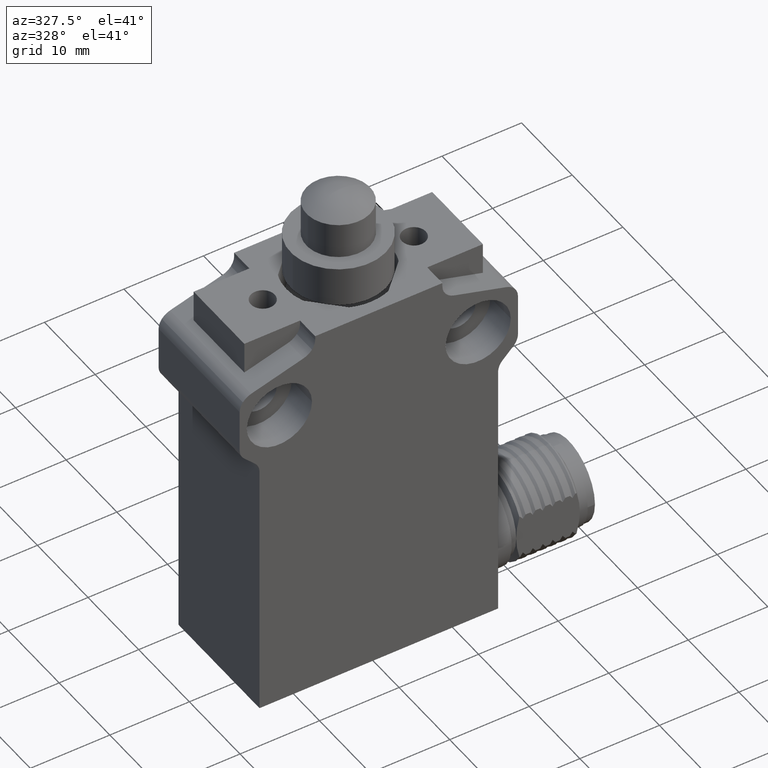
[diagram: clean part render]
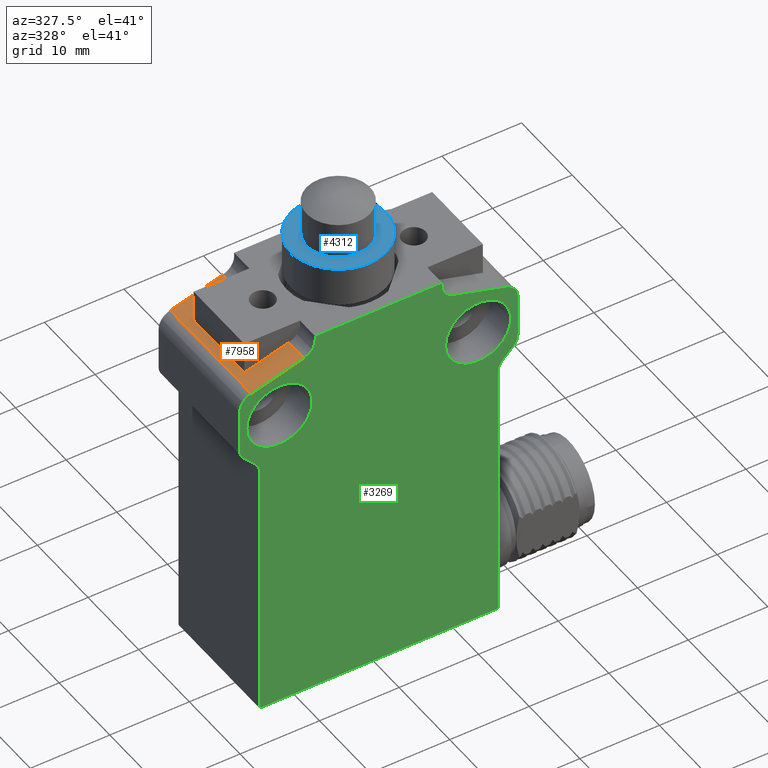
[diagram: same view with three faces highlighted in distinct colors, each labeled with its STEP entity id]
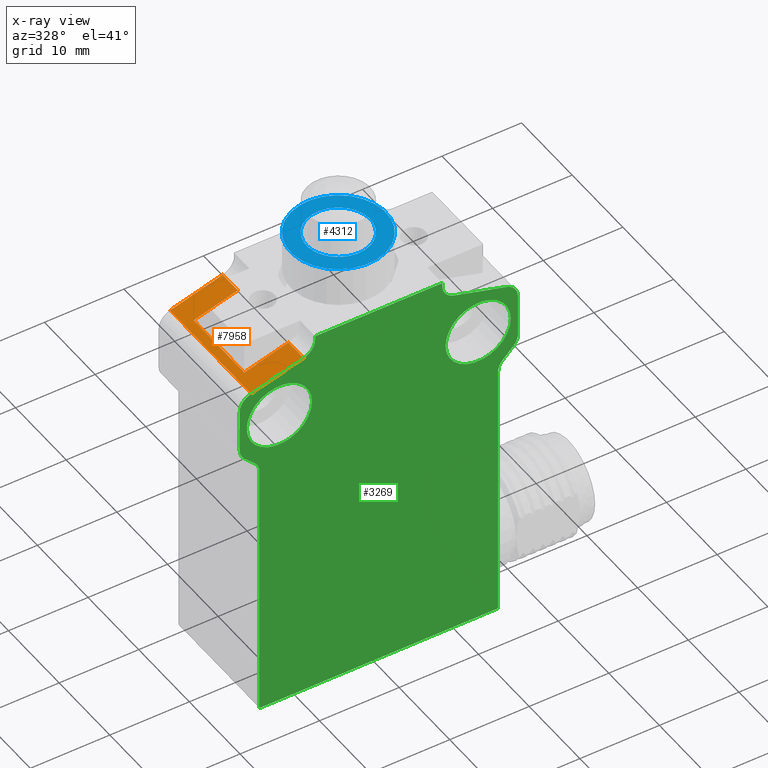
[diagram: x-ray of the same camera — body ghosted, the three highlighted faces saturated]
A machine part, auxiliary view with three faces highlighted in distinct colors.
The next image is the same camera in x-ray (body ghosted, the three faces saturated) — at least one of them is partly hidden behind the body in this view.
Their STEP definitions:

[orange] entity #7958 — the highlighted planar face has unit normal (-0.2781, 0, 0.9606).
#167 = CARTESIAN_POINT ( 'NONE',  ( -0.3718064506660582746, -2.797412204724409697E-16, 0.2591351820181342358 ) ) ;
#363 = CARTESIAN_POINT ( 'NONE',  ( -0.3718064506660582746, -2.797412204724409697E-16, 0.2591351820181342358 ) ) ;
#418 = VECTOR ( 'NONE', #7148, 39.37007874015748143 ) ;
#426 = DIRECTION ( 'NONE',  ( -0.2780580765410568533, 0.0000000000000000000, 0.9605642644145615527 ) ) ;
#460 = CARTESIAN_POINT ( 'NONE',  ( -0.5905511811023621549, -0.5118110236220472231, 0.1958143389970992410 ) ) ;
#533 = ORIENTED_EDGE ( 'NONE', *, *, #1970, .T. ) ;
#555 = VERTEX_POINT ( 'NONE', #5991 ) ;
#683 = LINE ( 'NONE', #167, #3804 ) ;
#801 = EDGE_CURVE ( 'NONE', #7412, #555, #2058, .T. ) ;
#804 = VECTOR ( 'NONE', #4547, 39.37007874015748854 ) ;
#847 = ORIENTED_EDGE ( 'NONE', *, *, #7298, .T. ) ;
#971 = CARTESIAN_POINT ( 'NONE',  ( -0.6321305572079567447, -2.797412204724409697E-16, 0.1837782038086374359 ) ) ;
#1266 = DIRECTION ( 'NONE',  ( 0.0000000000000000000, 1.000000000000000000, 8.881784197001268840E-17 ) ) ;
#1275 = CARTESIAN_POINT ( 'NONE',  ( -0.3718064506660582746, -0.6299212598425196763, 0.2591351820181342358 ) ) ;
#1328 = CARTESIAN_POINT ( 'NONE',  ( -0.5905511811023621549, -0.5118110236220472231, 0.1958143389970992410 ) ) ;
#1567 = VERTEX_POINT ( 'NONE', #971 ) ;
#1819 = EDGE_CURVE ( 'NONE', #6187, #1567, #5300, .T. ) ;
#1875 = VERTEX_POINT ( 'NONE', #3129 ) ;
#1903 = CARTESIAN_POINT ( 'NONE',  ( -0.3718064506660582746, -0.5118110236220472231, 0.2591351820181342358 ) ) ;
#1921 = CARTESIAN_POINT ( 'NONE',  ( -0.5905511811023621549, -0.1181102362204724532, 0.1958143389970992410 ) ) ;
#1970 = EDGE_CURVE ( 'NONE', #6187, #3579, #7594, .T. ) ;
#2058 = LINE ( 'NONE', #1328, #2854 ) ;
#2228 = VECTOR ( 'NONE', #6273, 39.37007874015748143 ) ;
#2502 = EDGE_CURVE ( 'NONE', #4329, #3579, #5261, .T. ) ;
#2557 = ORIENTED_EDGE ( 'NONE', *, *, #2502, .F. ) ;
#2589 = ORIENTED_EDGE ( 'NONE', *, *, #4042, .F. ) ;
#2674 = ORIENTED_EDGE ( 'NONE', *, *, #801, .T. ) ;
#2854 = VECTOR ( 'NONE', #1266, 39.37007874015748143 ) ;
#2929 = PLANE ( 'NONE',  #6134 ) ;
#2991 = CARTESIAN_POINT ( 'NONE',  ( -0.6889763779527560139, -2.797412204724409697E-16, 0.1673228346456692994 ) ) ;
#3129 = CARTESIAN_POINT ( 'NONE',  ( -0.3718064506660582746, -0.1181102362204724532, 0.2591351820181346799 ) ) ;
#3266 = VERTEX_POINT ( 'NONE', #363 ) ;
#3337 = EDGE_CURVE ( 'NONE', #3266, #1875, #7993, .T. ) ;
#3579 = VERTEX_POINT ( 'NONE', #1275 ) ;
#3649 = VECTOR ( 'NONE', #7365, 39.37007874015748143 ) ;
#3712 = DIRECTION ( 'NONE',  ( 0.9605642644145615527, 0.0000000000000000000, 0.2780580765410568533 ) ) ;
#3804 = VECTOR ( 'NONE', #3922, 39.37007874015748854 ) ;
#3870 = EDGE_LOOP ( 'NONE', ( #2557, #2589, #2674, #5430, #7218, #847, #4267, #533 ) ) ;
#3922 = DIRECTION ( 'NONE',  ( -0.9605642644145615527, 0.0000000000000000000, -0.2780580765410570754 ) ) ;
#4042 = EDGE_CURVE ( 'NONE', #7412, #4329, #4100, .T. ) ;
#4058 = FACE_OUTER_BOUND ( 'NONE', #3870, .T. ) ;
#4080 = CARTESIAN_POINT ( 'NONE',  ( -0.3718064506660582746, -0.5118110236220472231, 0.2591351820181342358 ) ) ;
#4100 = LINE ( 'NONE', #6211, #7192 ) ;
#4257 = CARTESIAN_POINT ( 'NONE',  ( -0.6321305572079567447, -0.6299212598425196763, 0.1837782038086374359 ) ) ;
#4267 = ORIENTED_EDGE ( 'NONE', *, *, #1819, .F. ) ;
#4329 = VERTEX_POINT ( 'NONE', #4080 ) ;
#4547 = DIRECTION ( 'NONE',  ( 0.9605642644145615527, 0.0000000000000000000, 0.2780580765410570754 ) ) ;
#4666 = CARTESIAN_POINT ( 'NONE',  ( -0.6321305572079567447, -0.6299212598425196763, 0.1837782038086374359 ) ) ;
#5037 = DIRECTION ( 'NONE',  ( 0.9605642644145613307, 0.0000000000000000000, 0.2780580765410575750 ) ) ;
#5261 = LINE ( 'NONE', #1903, #2228 ) ;
#5300 = LINE ( 'NONE', #4257, #3649 ) ;
#5430 = ORIENTED_EDGE ( 'NONE', *, *, #6364, .T. ) ;
#5991 = CARTESIAN_POINT ( 'NONE',  ( -0.5905511811023621549, -0.1181102362204724532, 0.1958143389970992410 ) ) ;
#6134 = AXIS2_PLACEMENT_3D ( 'NONE', #2991, #426, #7274 ) ;
#6187 = VERTEX_POINT ( 'NONE', #4666 ) ;
#6211 = CARTESIAN_POINT ( 'NONE',  ( -0.5905511811023621549, -0.5118110236220472231, 0.1958143389970992410 ) ) ;
#6273 = DIRECTION ( 'NONE',  ( 0.0000000000000000000, -1.000000000000000000, 0.0000000000000000000 ) ) ;
#6364 = EDGE_CURVE ( 'NONE', #555, #1875, #7978, .T. ) ;
#6436 = CARTESIAN_POINT ( 'NONE',  ( -0.6321305572079567447, -0.6299212598425196763, 0.1837782038086374359 ) ) ;
#7148 = DIRECTION ( 'NONE',  ( 0.0000000000000000000, -1.000000000000000000, 1.184237892933498075E-15 ) ) ;
#7192 = VECTOR ( 'NONE', #3712, 39.37007874015748143 ) ;
#7205 = VECTOR ( 'NONE', #5037, 39.37007874015748143 ) ;
#7218 = ORIENTED_EDGE ( 'NONE', *, *, #3337, .F. ) ;
#7274 = DIRECTION ( 'NONE',  ( 0.9605642644145615527, 0.0000000000000000000, 0.2780580765410568533 ) ) ;
#7298 = EDGE_CURVE ( 'NONE', #3266, #1567, #683, .T. ) ;
#7365 = DIRECTION ( 'NONE',  ( 0.0000000000000000000, 1.000000000000000000, 0.0000000000000000000 ) ) ;
#7412 = VERTEX_POINT ( 'NONE', #460 ) ;
#7594 = LINE ( 'NONE', #6436, #804 ) ;
#7825 = CARTESIAN_POINT ( 'NONE',  ( -0.3718064506660582746, -2.797412204724409697E-16, 0.2591351820181342358 ) ) ;
#7958 = ADVANCED_FACE ( 'NONE', ( #4058 ), #2929, .T. ) ;
#7978 = LINE ( 'NONE', #1921, #7205 ) ;
#7993 = LINE ( 'NONE', #7825, #418 ) ;

[blue] entity #4312 — the highlighted planar face has unit normal (0, 0, 1).
#40 = AXIS2_PLACEMENT_3D ( 'NONE', #3291, #3345, #5914 ) ;
#85 = DIRECTION ( 'NONE',  ( 0.0000000000000000000, 0.0000000000000000000, 1.000000000000000000 ) ) ;
#595 = DIRECTION ( 'NONE',  ( 0.0000000000000000000, 0.0000000000000000000, -1.000000000000000000 ) ) ;
#743 = CARTESIAN_POINT ( 'NONE',  ( -0.2356958233317451579, -0.3306956375219572419, 0.5511811023622046335 ) ) ;
#897 = EDGE_CURVE ( 'NONE', #1409, #3144, #1860, .T. ) ;
#933 = ORIENTED_EDGE ( 'NONE', *, *, #897, .T. ) ;
#1409 = VERTEX_POINT ( 'NONE', #743 ) ;
#1542 = AXIS2_PLACEMENT_3D ( 'NONE', #7967, #595, #3075 ) ;
#1548 = DIRECTION ( 'NONE',  ( -0.9977789854377208112, -0.06661153217628598688, 0.0000000000000000000 ) ) ;
#1772 = AXIS2_PLACEMENT_3D ( 'NONE', #1933, #85, #3793 ) ;
#1860 = CIRCLE ( 'NONE', #40, 0.2362204724409449064 ) ;
#1933 = CARTESIAN_POINT ( 'NONE',  ( -1.774357661203922578E-17, -0.3149606299212597826, 0.5511811023622046335 ) ) ;
#2018 = CIRCLE ( 'NONE', #2746, 0.1574803149606575081 ) ;
#2568 = ORIENTED_EDGE ( 'NONE', *, *, #4474, .T. ) ;
#2746 = AXIS2_PLACEMENT_3D ( 'NONE', #2827, #6608, #1548 ) ;
#2827 = CARTESIAN_POINT ( 'NONE',  ( -5.106377119707195032E-15, -0.3149606299212601157, 0.5511811023622046335 ) ) ;
#2830 = EDGE_CURVE ( 'NONE', #3958, #7625, #2018, .T. ) ;
#3075 = DIRECTION ( 'NONE',  ( -0.9977789854377208112, -0.06661153217628598688, 0.0000000000000000000 ) ) ;
#3144 = VERTEX_POINT ( 'NONE', #6408 ) ;
#3291 = CARTESIAN_POINT ( 'NONE',  ( -1.774357661203922578E-17, -0.3149606299212597826, 0.5511811023622046335 ) ) ;
#3345 = DIRECTION ( 'NONE',  ( 0.0000000000000000000, 0.0000000000000000000, 1.000000000000000000 ) ) ;
#3439 = PLANE ( 'NONE',  #7660 ) ;
#3643 = EDGE_LOOP ( 'NONE', ( #2568, #6107 ) ) ;
#3751 = EDGE_LOOP ( 'NONE', ( #933, #3752 ) ) ;
#3752 = ORIENTED_EDGE ( 'NONE', *, *, #4662, .T. ) ;
#3793 = DIRECTION ( 'NONE',  ( -0.9977789854377208112, -0.06661153217628594525, 0.0000000000000000000 ) ) ;
#3958 = VERTEX_POINT ( 'NONE', #6045 ) ;
#4312 = ADVANCED_FACE ( 'NONE', ( #6899, #5839 ), #3439, .T. ) ;
#4474 = EDGE_CURVE ( 'NONE', #7625, #3958, #5248, .T. ) ;
#4521 = CARTESIAN_POINT ( 'NONE',  ( -0.1178479116658738002, -0.3228281337216086233, 0.5511811023622046335 ) ) ;
#4662 = EDGE_CURVE ( 'NONE', #3144, #1409, #7073, .T. ) ;
#5248 = CIRCLE ( 'NONE', #1542, 0.1574803149606575081 ) ;
#5311 = DIRECTION ( 'NONE',  ( 0.06661153217628600076, -0.9977789854377208112, 0.0000000000000000000 ) ) ;
#5839 = FACE_OUTER_BOUND ( 'NONE', #3751, .T. ) ;
#5914 = DIRECTION ( 'NONE',  ( -0.9977789854377208112, -0.06661153217628594525, 0.0000000000000000000 ) ) ;
#6045 = CARTESIAN_POINT ( 'NONE',  ( 0.1571305488878524392, -0.3044706248541266813, 0.5511811023622046335 ) ) ;
#6107 = ORIENTED_EDGE ( 'NONE', *, *, #2830, .T. ) ;
#6390 = CARTESIAN_POINT ( 'NONE',  ( -0.1571305488878626810, -0.3254506349883936056, 0.5511811023622046335 ) ) ;
#6408 = CARTESIAN_POINT ( 'NONE',  ( 0.2356958233317450746, -0.2992256223205623233, 0.5511811023622046335 ) ) ;
#6608 = DIRECTION ( 'NONE',  ( 0.0000000000000000000, 0.0000000000000000000, -1.000000000000000000 ) ) ;
#6899 = FACE_BOUND ( 'NONE', #3643, .T. ) ;
#7073 = CIRCLE ( 'NONE', #1772, 0.2362204724409449064 ) ;
#7625 = VERTEX_POINT ( 'NONE', #6390 ) ;
#7660 = AXIS2_PLACEMENT_3D ( 'NONE', #4521, #7776, #5311 ) ;
#7776 = DIRECTION ( 'NONE',  ( 0.0000000000000000000, 0.0000000000000000000, 1.000000000000000000 ) ) ;
#7967 = CARTESIAN_POINT ( 'NONE',  ( -5.106377119707195032E-15, -0.3149606299212601157, 0.5511811023622046335 ) ) ;

[green] entity #3269 — the highlighted planar face has unit normal (0, -1, 0).
#1 = AXIS2_PLACEMENT_3D ( 'NONE', #2852, #7223, #7300 ) ;
#53 = ORIENTED_EDGE ( 'NONE', *, *, #4703, .T. ) ;
#106 = CIRCLE ( 'NONE', #7375, 0.07874015748031505668 ) ;
#115 = CARTESIAN_POINT ( 'NONE',  ( 0.5905511811023621549, -0.6299212598425196763, -1.574803149606299302 ) ) ;
#122 = CARTESIAN_POINT ( 'NONE',  ( 0.3149606299212598381, -0.6299212598425196763, 0.3347701634680996241 ) ) ;
#147 = VERTEX_POINT ( 'NONE', #2220 ) ;
#191 = CIRCLE ( 'NONE', #5687, 0.07874015748031502893 ) ;
#283 = DIRECTION ( 'NONE',  ( 0.0000000000000000000, 1.000000000000000000, 0.0000000000000000000 ) ) ;
#289 = DIRECTION ( 'NONE',  ( 0.0000000000000000000, 0.0000000000000000000, 1.000000000000000000 ) ) ;
#300 = CARTESIAN_POINT ( 'NONE',  ( 0.6102362204724409711, -0.6299212598425196763, -0.1032115305218035406 ) ) ;
#359 = VECTOR ( 'NONE', #7072, 39.37007874015748143 ) ;
#413 = CARTESIAN_POINT ( 'NONE',  ( -0.6889763779527560139, -0.6299212598425196763, -0.6102362204724409711 ) ) ;
#457 = AXIS2_PLACEMENT_3D ( 'NONE', #3400, #2062, #6431 ) ;
#466 = CARTESIAN_POINT ( 'NONE',  ( -0.6102362204724409711, -0.6299212598425196763, 0.1081432223586718394 ) ) ;
#526 = VERTEX_POINT ( 'NONE', #1061 ) ;
#530 = CARTESIAN_POINT ( 'NONE',  ( 0.4921259842519685179, -0.6299212598425196763, 9.642889763779526208E-18 ) ) ;
#540 = VERTEX_POINT ( 'NONE', #6609 ) ;
#568 = CARTESIAN_POINT ( 'NONE',  ( 0.5905511811023621549, -0.6299212598425196763, -1.574803149606299302 ) ) ;
#570 = LINE ( 'NONE', #2750, #5449 ) ;
#599 = CIRCLE ( 'NONE', #7450, 0.07874015748031494566 ) ;
#631 = CARTESIAN_POINT ( 'NONE',  ( 0.3937007874015748254, -0.6299212598425196763, 0.3347701634680996241 ) ) ;
#699 = LINE ( 'NONE', #115, #3910 ) ;
#714 = CIRCLE ( 'NONE', #457, 0.1614173228346456601 ) ;
#741 = ORIENTED_EDGE ( 'NONE', *, *, #1634, .F. ) ;
#747 = AXIS2_PLACEMENT_3D ( 'NONE', #5175, #2188, #5926 ) ;
#766 = LINE ( 'NONE', #7640, #359 ) ;
#799 = CARTESIAN_POINT ( 'NONE',  ( -0.6136136392766496916, -0.6299212598425196763, -0.2111895103296496101 ) ) ;
#804 = VECTOR ( 'NONE', #4547, 39.37007874015748854 ) ;
#813 = VECTOR ( 'NONE', #4934, 39.37007874015748143 ) ;
#862 = CARTESIAN_POINT ( 'NONE',  ( 0.6692913385826771977, -0.6299212598425196763, -0.2668672096356763945 ) ) ;
#889 = EDGE_CURVE ( 'NONE', #5776, #928, #3532, .T. ) ;
#904 = DIRECTION ( 'NONE',  ( -0.9238795325112868495, 0.0000000000000000000, 0.3826834323650891156 ) ) ;
#917 = CARTESIAN_POINT ( 'NONE',  ( -0.6659139197784685882, -0.6299212598425196763, -0.1588892298278309356 ) ) ;
#928 = VERTEX_POINT ( 'NONE', #4014 ) ;
#939 = ORIENTED_EDGE ( 'NONE', *, *, #6913, .F. ) ;
#953 = EDGE_CURVE ( 'NONE', #2988, #540, #2550, .T. ) ;
#983 = PLANE ( 'NONE',  #1649 ) ;
#987 = EDGE_CURVE ( 'NONE', #7515, #7141, #714, .T. ) ;
#1026 = CARTESIAN_POINT ( 'NONE',  ( 0.6136136392766496916, -0.6299212598425196763, -0.2111895103296491938 ) ) ;
#1061 = CARTESIAN_POINT ( 'NONE',  ( 0.3307086614173229133, -0.6299212598425196763, -1.976792077363838618E-17 ) ) ;
#1066 = CIRCLE ( 'NONE', #747, 0.1614173228346456601 ) ;
#1067 = VECTOR ( 'NONE', #7635, 39.37007874015748143 ) ;
#1085 = DIRECTION ( 'NONE',  ( -0.7993929185766714962, 0.0000000000000000000, 0.6008085899265014351 ) ) ;
#1093 = ORIENTED_EDGE ( 'NONE', *, *, #1147, .F. ) ;
#1096 = VERTEX_POINT ( 'NONE', #4756 ) ;
#1139 = VECTOR ( 'NONE', #7586, 39.37007874015748143 ) ;
#1147 = EDGE_CURVE ( 'NONE', #3579, #147, #6920, .T. ) ;
#1160 = AXIS2_PLACEMENT_3D ( 'NONE', #1603, #2309, #4196 ) ;
#1173 = DIRECTION ( 'NONE',  ( 0.0000000000000000000, 1.000000000000000000, 0.0000000000000000000 ) ) ;
#1184 = EDGE_LOOP ( 'NONE', ( #7534, #6007, #2174, #5016, #2548, #6207, #7504, #53, #1864, #2951, #7593, #1093, #4248, #7153, #1783, #5060, #2793, #2749, #5017, #2959, #4455, #939, #1957, #5777, #7428, #5680, #3944, #741 ) ) ;
#1226 = VERTEX_POINT ( 'NONE', #4211 ) ;
#1237 = CARTESIAN_POINT ( 'NONE',  ( -0.6889763779527560139, -0.6299212598425196763, -0.1032115305218037488 ) ) ;
#1256 = EDGE_CURVE ( 'NONE', #7990, #4625, #5579, .T. ) ;
#1275 = CARTESIAN_POINT ( 'NONE',  ( -0.3718064506660582746, -0.6299212598425196763, 0.2591351820181342358 ) ) ;
#1352 = EDGE_CURVE ( 'NONE', #5130, #5776, #2239, .T. ) ;
#1472 = CARTESIAN_POINT ( 'NONE',  ( -0.4921259842519685179, -0.6299212598425196763, 9.642889763779526208E-18 ) ) ;
#1512 = LINE ( 'NONE', #122, #3110 ) ;
#1533 = EDGE_CURVE ( 'NONE', #6396, #1226, #5172, .T. ) ;
#1551 = EDGE_LOOP ( 'NONE', ( #6977, #2275 ) ) ;
#1603 = CARTESIAN_POINT ( 'NONE',  ( -0.6692913385826771977, -0.6299212598425196763, -0.2668672096356767831 ) ) ;
#1620 = DIRECTION ( 'NONE',  ( 0.0000000000000000000, -1.000000000000000000, 0.0000000000000000000 ) ) ;
#1634 = EDGE_CURVE ( 'NONE', #6561, #1773, #4684, .T. ) ;
#1649 = AXIS2_PLACEMENT_3D ( 'NONE', #413, #1620, #2813 ) ;
#1660 = EDGE_CURVE ( 'NONE', #5603, #2390, #106, .T. ) ;
#1676 = FACE_BOUND ( 'NONE', #6865, .T. ) ;
#1686 = AXIS2_PLACEMENT_3D ( 'NONE', #862, #3993, #904 ) ;
#1691 = ORIENTED_EDGE ( 'NONE', *, *, #3456, .T. ) ;
#1737 = CARTESIAN_POINT ( 'NONE',  ( -0.6535433070866142335, -0.6299212598425196763, 1.902654355788085128E-16 ) ) ;
#1769 = EDGE_CURVE ( 'NONE', #1096, #5968, #5593, .T. ) ;
#1773 = VERTEX_POINT ( 'NONE', #6744 ) ;
#1783 = ORIENTED_EDGE ( 'NONE', *, *, #1660, .F. ) ;
#1798 = DIRECTION ( 'NONE',  ( -0.7993929185766714962, 0.0000000000000000000, 0.6008085899265014351 ) ) ;
#1846 = CARTESIAN_POINT ( 'NONE',  ( -0.6102362204724409711, -0.6299212598425196763, 0.1081432223586718394 ) ) ;
#1862 = DIRECTION ( 'NONE',  ( -0.9238795325112868495, 0.0000000000000000000, -0.3826834323650897818 ) ) ;
#1864 = ORIENTED_EDGE ( 'NONE', *, *, #1769, .F. ) ;
#1872 = EDGE_CURVE ( 'NONE', #147, #4939, #2842, .T. ) ;
#1874 = DIRECTION ( 'NONE',  ( 0.0000000000000000000, 1.000000000000000000, 0.0000000000000000000 ) ) ;
#1940 = DIRECTION ( 'NONE',  ( 0.7993929185766708301, 0.0000000000000000000, -0.6008085899265023233 ) ) ;
#1946 = CIRCLE ( 'NONE', #6882, 0.1614173228346456601 ) ;
#1957 = ORIENTED_EDGE ( 'NONE', *, *, #6679, .F. ) ;
#1970 = EDGE_CURVE ( 'NONE', #6187, #3579, #7594, .T. ) ;
#2014 = CARTESIAN_POINT ( 'NONE',  ( 0.3149606299212598381, -0.6299212598425196763, 0.3347701634680996241 ) ) ;
#2049 = CARTESIAN_POINT ( 'NONE',  ( 0.6692913385826771977, -0.6299212598425196763, -0.2668672096356763945 ) ) ;
#2062 = DIRECTION ( 'NONE',  ( 0.0000000000000000000, 1.000000000000000000, 0.0000000000000000000 ) ) ;
#2174 = ORIENTED_EDGE ( 'NONE', *, *, #6828, .F. ) ;
#2188 = DIRECTION ( 'NONE',  ( 0.0000000000000000000, 1.000000000000000000, 0.0000000000000000000 ) ) ;
#2220 = CARTESIAN_POINT ( 'NONE',  ( -0.3307564631041991499, -0.6299212598425196763, 0.2874624004817612488 ) ) ;
#2239 = CIRCLE ( 'NONE', #6811, 0.07874015748031494566 ) ;
#2264 = CARTESIAN_POINT ( 'NONE',  ( 0.3718064506660586632, -0.6299212598425196763, 0.2591351820181346799 ) ) ;
#2275 = ORIENTED_EDGE ( 'NONE', *, *, #987, .T. ) ;
#2288 = DIRECTION ( 'NONE',  ( 0.7993929185766708301, 0.0000000000000000000, 0.6008085899265023233 ) ) ;
#2309 = DIRECTION ( 'NONE',  ( 0.0000000000000000000, -1.000000000000000000, 0.0000000000000000000 ) ) ;
#2390 = VERTEX_POINT ( 'NONE', #3787 ) ;
#2433 = CARTESIAN_POINT ( 'NONE',  ( -0.5905511811023621549, -0.6299212598425196763, -1.574803149606299302 ) ) ;
#2464 = FACE_OUTER_BOUND ( 'NONE', #1184, .T. ) ;
#2465 = DIRECTION ( 'NONE',  ( 0.9238795325112868495, 0.0000000000000000000, 0.3826834323650891156 ) ) ;
#2470 = VERTEX_POINT ( 'NONE', #2638 ) ;
#2495 = DIRECTION ( 'NONE',  ( 0.0000000000000000000, -1.000000000000000000, 0.0000000000000000000 ) ) ;
#2503 = AXIS2_PLACEMENT_3D ( 'NONE', #530, #1173, #4948 ) ;
#2525 = CARTESIAN_POINT ( 'NONE',  ( -0.6102362204724409711, -0.6299212598425196763, -0.1032115305218037488 ) ) ;
#2548 = ORIENTED_EDGE ( 'NONE', *, *, #4826, .T. ) ;
#2550 = LINE ( 'NONE', #5884, #6161 ) ;
#2592 = EDGE_CURVE ( 'NONE', #4827, #5109, #5254, .T. ) ;
#2606 = CIRCLE ( 'NONE', #1160, 0.07874015748031494566 ) ;
#2635 = CARTESIAN_POINT ( 'NONE',  ( 0.6829826403552194947, -0.6299212598425196763, -0.1333440842513381741 ) ) ;
#2638 = CARTESIAN_POINT ( 'NONE',  ( -0.5965449186998986741, -0.6299212598425196763, -0.2367346559061422051 ) ) ;
#2740 = EDGE_CURVE ( 'NONE', #5109, #7990, #191, .T. ) ;
#2749 = ORIENTED_EDGE ( 'NONE', *, *, #2740, .F. ) ;
#2750 = CARTESIAN_POINT ( 'NONE',  ( 0.6321305572079567447, -0.6299212598425196763, 0.1837782038086374359 ) ) ;
#2753 = CIRCLE ( 'NONE', #6397, 0.07874015748031494566 ) ;
#2769 = CARTESIAN_POINT ( 'NONE',  ( 0.6102362204724409711, -0.6299212598425196763, 0.1081432223586718394 ) ) ;
#2793 = ORIENTED_EDGE ( 'NONE', *, *, #1256, .F. ) ;
#2813 = DIRECTION ( 'NONE',  ( 0.0000000000000000000, 0.0000000000000000000, 1.000000000000000000 ) ) ;
#2842 = CIRCLE ( 'NONE', #3967, 0.07874015748031494566 ) ;
#2852 = CARTESIAN_POINT ( 'NONE',  ( 0.6102362204724409711, -0.6299212598425196763, -0.1032115305218035406 ) ) ;
#2861 = VECTOR ( 'NONE', #2907, 39.37007874015748143 ) ;
#2907 = DIRECTION ( 'NONE',  ( 0.0000000000000000000, 0.0000000000000000000, 1.000000000000000000 ) ) ;
#2919 = EDGE_CURVE ( 'NONE', #2390, #6187, #7431, .T. ) ;
#2946 = DIRECTION ( 'NONE',  ( 0.7993929185766708301, 0.0000000000000000000, -0.6008085899265023233 ) ) ;
#2951 = ORIENTED_EDGE ( 'NONE', *, *, #3921, .T. ) ;
#2959 = ORIENTED_EDGE ( 'NONE', *, *, #6123, .F. ) ;
#2988 = VERTEX_POINT ( 'NONE', #4956 ) ;
#3008 = DIRECTION ( 'NONE',  ( -0.7993929185766708301, 0.0000000000000000000, -0.6008085899265023233 ) ) ;
#3061 = CARTESIAN_POINT ( 'NONE',  ( -0.3937007874015748254, -0.6299212598425196763, 0.3347701634681000127 ) ) ;
#3110 = VECTOR ( 'NONE', #4438, 39.37007874015748143 ) ;
#3113 = DIRECTION ( 'NONE',  ( 0.0000000000000000000, 1.000000000000000000, 0.0000000000000000000 ) ) ;
#3120 = VECTOR ( 'NONE', #8004, 39.37007874015748143 ) ;
#3256 = AXIS2_PLACEMENT_3D ( 'NONE', #3061, #5518, #2946 ) ;
#3269 = ADVANCED_FACE ( 'NONE', ( #3328, #1676, #2464 ), #983, .T. ) ;
#3328 = FACE_BOUND ( 'NONE', #1551, .T. ) ;
#3389 = DIRECTION ( 'NONE',  ( 0.7993929185766708301, 0.0000000000000000000, 0.6008085899265023233 ) ) ;
#3400 = CARTESIAN_POINT ( 'NONE',  ( -0.4921259842519685179, -0.6299212598425196763, 9.642889763779526208E-18 ) ) ;
#3456 = EDGE_CURVE ( 'NONE', #6784, #526, #7024, .T. ) ;
#3475 = CARTESIAN_POINT ( 'NONE',  ( -0.6889763779527560139, -0.6299212598425196763, -0.1032115305218037488 ) ) ;
#3488 = DIRECTION ( 'NONE',  ( 0.9238795325112868495, 0.0000000000000000000, -0.3826834323650897818 ) ) ;
#3532 = CIRCLE ( 'NONE', #1686, 0.07874015748031494566 ) ;
#3540 = LINE ( 'NONE', #3475, #2861 ) ;
#3579 = VERTEX_POINT ( 'NONE', #1275 ) ;
#3640 = AXIS2_PLACEMENT_3D ( 'NONE', #2525, #3113, #1862 ) ;
#3787 = CARTESIAN_POINT ( 'NONE',  ( -0.6731805447698165912, -0.6299212598425196763, 0.1554509853450105339 ) ) ;
#3910 = VECTOR ( 'NONE', #7579, 39.37007874015748143 ) ;
#3921 = EDGE_CURVE ( 'NONE', #1096, #4939, #6047, .T. ) ;
#3944 = ORIENTED_EDGE ( 'NONE', *, *, #7698, .T. ) ;
#3967 = AXIS2_PLACEMENT_3D ( 'NONE', #5128, #2495, #1940 ) ;
#3993 = DIRECTION ( 'NONE',  ( 0.0000000000000000000, -1.000000000000000000, 0.0000000000000000000 ) ) ;
#4009 = DIRECTION ( 'NONE',  ( 0.0000000000000000000, 1.000000000000000000, 0.0000000000000000000 ) ) ;
#4014 = CARTESIAN_POINT ( 'NONE',  ( 0.5905511811023621549, -0.6299212598425196763, -0.2668672096356763945 ) ) ;
#4028 = VERTEX_POINT ( 'NONE', #5509 ) ;
#4066 = LINE ( 'NONE', #5686, #1139 ) ;
#4146 = DIRECTION ( 'NONE',  ( 0.0000000000000000000, -2.145195073449075173E-14, -1.000000000000000000 ) ) ;
#4196 = DIRECTION ( 'NONE',  ( 0.9238795325112868495, 0.0000000000000000000, 0.3826834323650891156 ) ) ;
#4211 = CARTESIAN_POINT ( 'NONE',  ( 0.6731805447698165912, -0.6299212598425196763, 0.1554509853450105894 ) ) ;
#4248 = ORIENTED_EDGE ( 'NONE', *, *, #1970, .F. ) ;
#4283 = EDGE_CURVE ( 'NONE', #526, #6784, #1066, .T. ) ;
#4371 = DIRECTION ( 'NONE',  ( 0.0000000000000000000, -1.000000000000000000, 0.0000000000000000000 ) ) ;
#4401 = EDGE_CURVE ( 'NONE', #6067, #2470, #2606, .T. ) ;
#4411 = CARTESIAN_POINT ( 'NONE',  ( -0.5905511811023621549, -0.6299212598425196763, -0.2668672096356767831 ) ) ;
#4438 = DIRECTION ( 'NONE',  ( 0.0000000000000000000, 2.145195073449065391E-14, 1.000000000000000000 ) ) ;
#4455 = ORIENTED_EDGE ( 'NONE', *, *, #4401, .F. ) ;
#4547 = DIRECTION ( 'NONE',  ( 0.9605642644145615527, 0.0000000000000000000, 0.2780580765410570754 ) ) ;
#4625 = VERTEX_POINT ( 'NONE', #1237 ) ;
#4666 = CARTESIAN_POINT ( 'NONE',  ( -0.6321305572079567447, -0.6299212598425196763, 0.1837782038086374359 ) ) ;
#4684 = CIRCLE ( 'NONE', #1, 0.07874015748031502893 ) ;
#4690 = VECTOR ( 'NONE', #4146, 39.37007874015748143 ) ;
#4703 = EDGE_CURVE ( 'NONE', #7802, #5968, #1512, .T. ) ;
#4741 = AXIS2_PLACEMENT_3D ( 'NONE', #2769, #283, #3389 ) ;
#4756 = CARTESIAN_POINT ( 'NONE',  ( -0.3149606299212598381, -0.6299212598425196763, 0.3543307086614173040 ) ) ;
#4826 = EDGE_CURVE ( 'NONE', #6396, #5590, #570, .T. ) ;
#4827 = VERTEX_POINT ( 'NONE', #5154 ) ;
#4830 = DIRECTION ( 'NONE',  ( 0.0000000000000000000, 1.000000000000000000, 0.0000000000000000000 ) ) ;
#4868 = EDGE_CURVE ( 'NONE', #928, #5285, #766, .T. ) ;
#4934 = DIRECTION ( 'NONE',  ( 1.000000000000000000, 0.0000000000000000000, 0.0000000000000000000 ) ) ;
#4939 = VERTEX_POINT ( 'NONE', #7827 ) ;
#4948 = DIRECTION ( 'NONE',  ( 1.000000000000000000, 0.0000000000000000000, 0.0000000000000000000 ) ) ;
#4956 = CARTESIAN_POINT ( 'NONE',  ( 0.6889763779527560139, -0.6299212598425196763, -0.1032115305218035406 ) ) ;
#5016 = ORIENTED_EDGE ( 'NONE', *, *, #1533, .F. ) ;
#5017 = ORIENTED_EDGE ( 'NONE', *, *, #2592, .F. ) ;
#5060 = ORIENTED_EDGE ( 'NONE', *, *, #5890, .F. ) ;
#5073 = CARTESIAN_POINT ( 'NONE',  ( -0.5905511811023621549, -0.6299212598425196763, -1.574803149606299302 ) ) ;
#5075 = CARTESIAN_POINT ( 'NONE',  ( -0.6692913385826771977, -0.6299212598425196763, -0.2668672096356767831 ) ) ;
#5081 = CARTESIAN_POINT ( 'NONE',  ( 0.3937007874015748254, -0.6299212598425196763, 0.3347701634680996241 ) ) ;
#5109 = VERTEX_POINT ( 'NONE', #917 ) ;
#5128 = CARTESIAN_POINT ( 'NONE',  ( -0.3937007874015748254, -0.6299212598425196763, 0.3347701634681000127 ) ) ;
#5130 = VERTEX_POINT ( 'NONE', #1026 ) ;
#5154 = CARTESIAN_POINT ( 'NONE',  ( -0.6136136392766496916, -0.6299212598425196763, -0.2111895103296496101 ) ) ;
#5172 = CIRCLE ( 'NONE', #4741, 0.07874015748031494566 ) ;
#5175 = CARTESIAN_POINT ( 'NONE',  ( 0.4921259842519685179, -0.6299212598425196763, 9.642889763779526208E-18 ) ) ;
#5181 = DIRECTION ( 'NONE',  ( -0.9238795325112868495, 0.0000000000000000000, 0.3826834323650891156 ) ) ;
#5254 = LINE ( 'NONE', #799, #1067 ) ;
#5256 = DIRECTION ( 'NONE',  ( 0.0000000000000000000, 1.000000000000000000, 0.0000000000000000000 ) ) ;
#5264 = CIRCLE ( 'NONE', #6318, 0.07874015748031494566 ) ;
#5283 = CARTESIAN_POINT ( 'NONE',  ( 0.6535433070866142335, -0.6299212598425196763, 9.642889763779526208E-18 ) ) ;
#5285 = VERTEX_POINT ( 'NONE', #568 ) ;
#5387 = DIRECTION ( 'NONE',  ( 0.0000000000000000000, 1.000000000000000000, 0.0000000000000000000 ) ) ;
#5403 = CARTESIAN_POINT ( 'NONE',  ( -0.3149606299212598381, -0.6299212598425196763, 0.3543307086614173040 ) ) ;
#5406 = DIRECTION ( 'NONE',  ( 0.0000000000000000000, 1.000000000000000000, 0.0000000000000000000 ) ) ;
#5449 = VECTOR ( 'NONE', #5786, 39.37007874015748143 ) ;
#5509 = CARTESIAN_POINT ( 'NONE',  ( 0.3307564631041991499, -0.6299212598425196763, 0.2874624004817608602 ) ) ;
#5518 = DIRECTION ( 'NONE',  ( 0.0000000000000000000, -1.000000000000000000, 0.0000000000000000000 ) ) ;
#5562 = CIRCLE ( 'NONE', #7194, 0.07874015748031494566 ) ;
#5566 = LINE ( 'NONE', #2433, #3120 ) ;
#5579 = CIRCLE ( 'NONE', #3640, 0.07874015748031502893 ) ;
#5590 = VERTEX_POINT ( 'NONE', #2264 ) ;
#5593 = LINE ( 'NONE', #6209, #813 ) ;
#5603 = VERTEX_POINT ( 'NONE', #5966 ) ;
#5680 = ORIENTED_EDGE ( 'NONE', *, *, #1352, .F. ) ;
#5686 = CARTESIAN_POINT ( 'NONE',  ( 0.6136136392766496916, -0.6299212598425196763, -0.2111895103296491938 ) ) ;
#5687 = AXIS2_PLACEMENT_3D ( 'NONE', #5909, #5256, #5848 ) ;
#5776 = VERTEX_POINT ( 'NONE', #7163 ) ;
#5777 = ORIENTED_EDGE ( 'NONE', *, *, #4868, .F. ) ;
#5786 = DIRECTION ( 'NONE',  ( -0.9605642644145613307, 0.0000000000000000000, 0.2780580765410575750 ) ) ;
#5848 = DIRECTION ( 'NONE',  ( -0.9238795325112868495, 0.0000000000000000000, -0.3826834323650897818 ) ) ;
#5884 = CARTESIAN_POINT ( 'NONE',  ( 0.6889763779527560139, -0.6299212598425196763, -0.1032115305218035406 ) ) ;
#5890 = EDGE_CURVE ( 'NONE', #4625, #5603, #3540, .T. ) ;
#5909 = CARTESIAN_POINT ( 'NONE',  ( -0.6102362204724409711, -0.6299212598425196763, -0.1032115305218037488 ) ) ;
#5926 = DIRECTION ( 'NONE',  ( 1.000000000000000000, 0.0000000000000000000, 0.0000000000000000000 ) ) ;
#5966 = CARTESIAN_POINT ( 'NONE',  ( -0.6889763779527560139, -0.6299212598425196763, 0.1081432223586718394 ) ) ;
#5968 = VERTEX_POINT ( 'NONE', #7301 ) ;
#6007 = ORIENTED_EDGE ( 'NONE', *, *, #953, .T. ) ;
#6047 = LINE ( 'NONE', #5403, #4690 ) ;
#6067 = VERTEX_POINT ( 'NONE', #4411 ) ;
#6090 = CARTESIAN_POINT ( 'NONE',  ( -0.6829826403552194947, -0.6299212598425196763, -0.1333440842513383684 ) ) ;
#6123 = EDGE_CURVE ( 'NONE', #2470, #4827, #2753, .T. ) ;
#6161 = VECTOR ( 'NONE', #289, 39.37007874015748143 ) ;
#6187 = VERTEX_POINT ( 'NONE', #4666 ) ;
#6204 = ORIENTED_EDGE ( 'NONE', *, *, #4283, .T. ) ;
#6207 = ORIENTED_EDGE ( 'NONE', *, *, #6972, .F. ) ;
#6209 = CARTESIAN_POINT ( 'NONE',  ( -0.3149606299212598381, -0.6299212598425196763, 0.3543307086614173040 ) ) ;
#6286 = DIRECTION ( 'NONE',  ( 0.0000000000000000000, -1.000000000000000000, 0.0000000000000000000 ) ) ;
#6317 = CARTESIAN_POINT ( 'NONE',  ( -0.3307086614173229133, -0.6299212598425196763, -1.494647637795278066E-17 ) ) ;
#6318 = AXIS2_PLACEMENT_3D ( 'NONE', #631, #4371, #3008 ) ;
#6336 = AXIS2_PLACEMENT_3D ( 'NONE', #300, #5387, #3488 ) ;
#6396 = VERTEX_POINT ( 'NONE', #8038 ) ;
#6397 = AXIS2_PLACEMENT_3D ( 'NONE', #5075, #6286, #2465 ) ;
#6431 = DIRECTION ( 'NONE',  ( -1.000000000000000000, 0.0000000000000000000, 0.0000000000000000000 ) ) ;
#6436 = CARTESIAN_POINT ( 'NONE',  ( -0.6321305572079567447, -0.6299212598425196763, 0.1837782038086374359 ) ) ;
#6551 = DIRECTION ( 'NONE',  ( -1.000000000000000000, 0.0000000000000000000, 0.0000000000000000000 ) ) ;
#6561 = VERTEX_POINT ( 'NONE', #2635 ) ;
#6609 = CARTESIAN_POINT ( 'NONE',  ( 0.6889763779527560139, -0.6299212598425196763, 0.1081432223586718394 ) ) ;
#6679 = EDGE_CURVE ( 'NONE', #5285, #7721, #699, .T. ) ;
#6731 = EDGE_CURVE ( 'NONE', #7141, #7515, #1946, .T. ) ;
#6744 = CARTESIAN_POINT ( 'NONE',  ( 0.6659139197784685882, -0.6299212598425196763, -0.1588892298278309356 ) ) ;
#6784 = VERTEX_POINT ( 'NONE', #5283 ) ;
#6811 = AXIS2_PLACEMENT_3D ( 'NONE', #2049, #7598, #5181 ) ;
#6828 = EDGE_CURVE ( 'NONE', #1226, #540, #599, .T. ) ;
#6865 = EDGE_LOOP ( 'NONE', ( #1691, #6204 ) ) ;
#6880 = DIRECTION ( 'NONE',  ( -0.7993929185766708301, 0.0000000000000000000, -0.6008085899265023233 ) ) ;
#6882 = AXIS2_PLACEMENT_3D ( 'NONE', #1472, #4009, #6551 ) ;
#6883 = CIRCLE ( 'NONE', #6336, 0.07874015748031502893 ) ;
#6900 = DIRECTION ( 'NONE',  ( 0.0000000000000000000, -1.000000000000000000, 0.0000000000000000000 ) ) ;
#6913 = EDGE_CURVE ( 'NONE', #7721, #6067, #5566, .T. ) ;
#6920 = CIRCLE ( 'NONE', #3256, 0.07874015748031494566 ) ;
#6972 = EDGE_CURVE ( 'NONE', #4028, #5590, #5264, .T. ) ;
#6977 = ORIENTED_EDGE ( 'NONE', *, *, #6731, .T. ) ;
#7024 = CIRCLE ( 'NONE', #2503, 0.1614173228346456601 ) ;
#7072 = DIRECTION ( 'NONE',  ( 0.0000000000000000000, 0.0000000000000000000, -1.000000000000000000 ) ) ;
#7141 = VERTEX_POINT ( 'NONE', #6317 ) ;
#7153 = ORIENTED_EDGE ( 'NONE', *, *, #2919, .F. ) ;
#7163 = CARTESIAN_POINT ( 'NONE',  ( 0.5965449186998986741, -0.6299212598425196763, -0.2367346559061417888 ) ) ;
#7194 = AXIS2_PLACEMENT_3D ( 'NONE', #5081, #6900, #6880 ) ;
#7195 = EDGE_CURVE ( 'NONE', #7802, #4028, #5562, .T. ) ;
#7223 = DIRECTION ( 'NONE',  ( 0.0000000000000000000, 1.000000000000000000, 0.0000000000000000000 ) ) ;
#7282 = CARTESIAN_POINT ( 'NONE',  ( 0.6102362204724409711, -0.6299212598425196763, 0.1081432223586718394 ) ) ;
#7300 = DIRECTION ( 'NONE',  ( 0.9238795325112868495, 0.0000000000000000000, -0.3826834323650897818 ) ) ;
#7301 = CARTESIAN_POINT ( 'NONE',  ( 0.3149606299212598381, -0.6299212598425196763, 0.3543307086614173040 ) ) ;
#7375 = AXIS2_PLACEMENT_3D ( 'NONE', #466, #4830, #1085 ) ;
#7428 = ORIENTED_EDGE ( 'NONE', *, *, #889, .F. ) ;
#7431 = CIRCLE ( 'NONE', #7799, 0.07874015748031505668 ) ;
#7450 = AXIS2_PLACEMENT_3D ( 'NONE', #7282, #5406, #2288 ) ;
#7504 = ORIENTED_EDGE ( 'NONE', *, *, #7195, .F. ) ;
#7515 = VERTEX_POINT ( 'NONE', #1737 ) ;
#7534 = ORIENTED_EDGE ( 'NONE', *, *, #7797, .F. ) ;
#7579 = DIRECTION ( 'NONE',  ( -1.000000000000000000, 0.0000000000000000000, 0.0000000000000000000 ) ) ;
#7586 = DIRECTION ( 'NONE',  ( 0.7071067811865460184, 0.0000000000000000000, 0.7071067811865490160 ) ) ;
#7593 = ORIENTED_EDGE ( 'NONE', *, *, #1872, .F. ) ;
#7594 = LINE ( 'NONE', #6436, #804 ) ;
#7598 = DIRECTION ( 'NONE',  ( 0.0000000000000000000, -1.000000000000000000, 0.0000000000000000000 ) ) ;
#7635 = DIRECTION ( 'NONE',  ( -0.7071067811865460184, 0.0000000000000000000, 0.7071067811865490160 ) ) ;
#7640 = CARTESIAN_POINT ( 'NONE',  ( 0.5905511811023621549, -0.6299212598425196763, -0.2668672096356763945 ) ) ;
#7698 = EDGE_CURVE ( 'NONE', #5130, #1773, #4066, .T. ) ;
#7721 = VERTEX_POINT ( 'NONE', #5073 ) ;
#7797 = EDGE_CURVE ( 'NONE', #2988, #6561, #6883, .T. ) ;
#7799 = AXIS2_PLACEMENT_3D ( 'NONE', #1846, #1874, #1798 ) ;
#7802 = VERTEX_POINT ( 'NONE', #2014 ) ;
#7827 = CARTESIAN_POINT ( 'NONE',  ( -0.3149606299212598381, -0.6299212598425196763, 0.3347701634681000127 ) ) ;
#7990 = VERTEX_POINT ( 'NONE', #6090 ) ;
#8004 = DIRECTION ( 'NONE',  ( 0.0000000000000000000, 3.208198803958670439E-16, 1.000000000000000000 ) ) ;
#8038 = CARTESIAN_POINT ( 'NONE',  ( 0.6321305572079567447, -0.6299212598425196763, 0.1837782038086374359 ) ) ;